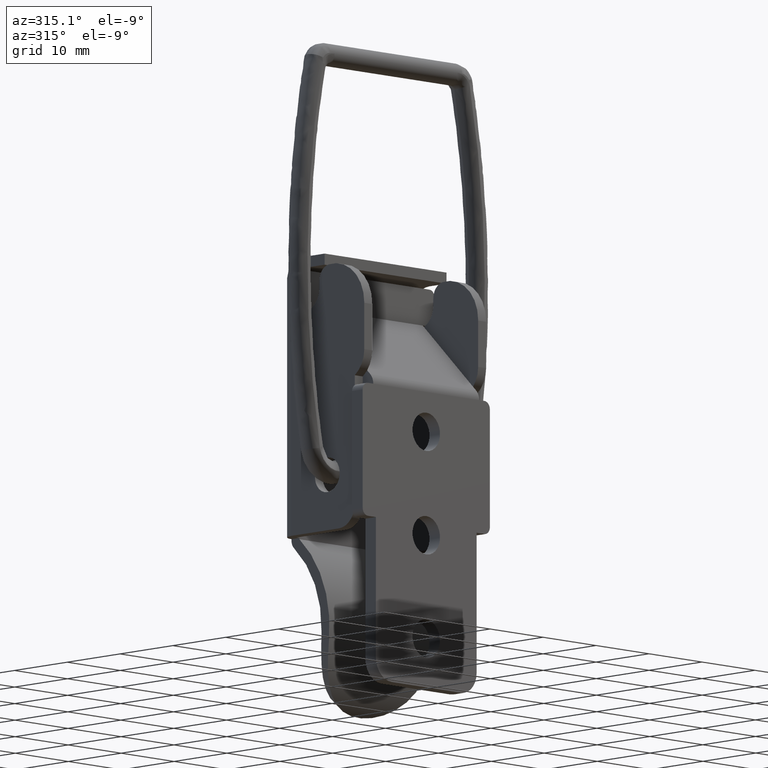
[diagram: clean part render]
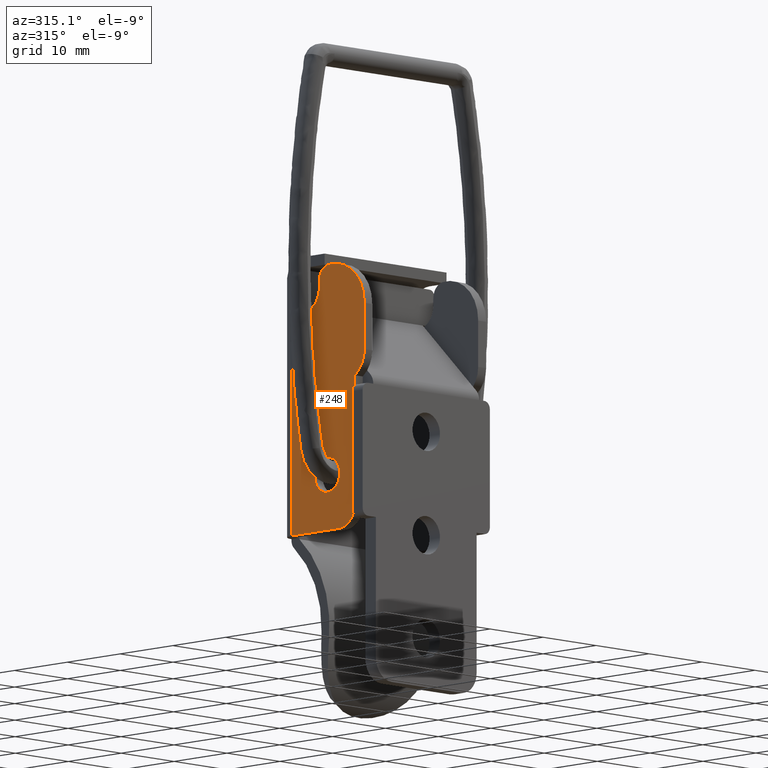
[diagram: same view with one face highlighted and labeled with its STEP entity id]
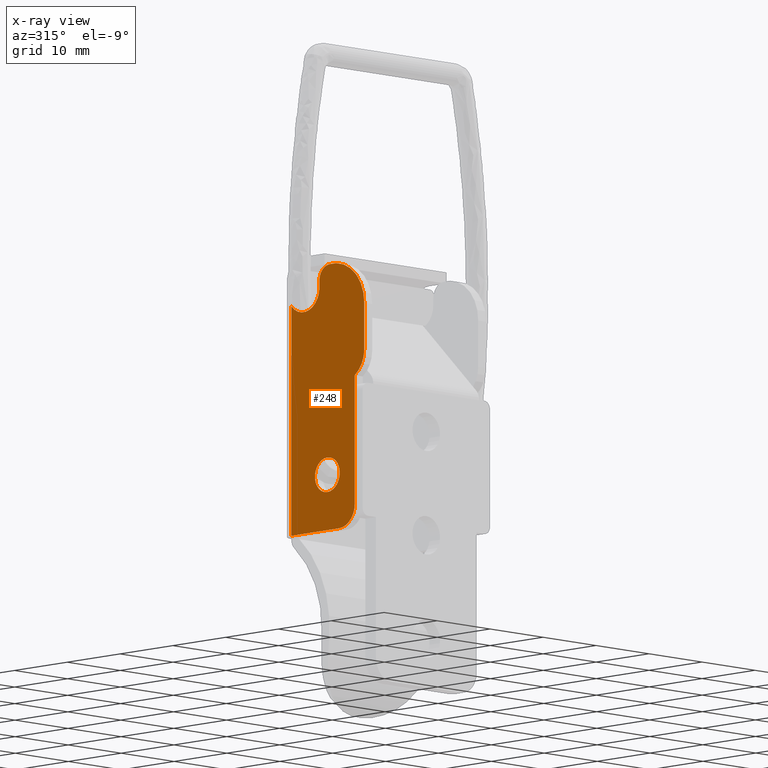
[diagram: x-ray of the same camera — body ghosted, the highlighted face saturated]
A machine part, auxiliary view. The second image highlights one B-rep face of the part: STEP entity #248.
The next image is the same camera in x-ray: the body ghosted, the highlighted face saturated — about 0% of this face is hidden behind the body in this view.
In plain terms, the highlighted planar face has unit normal (-1, 0, 0).
Its self-contained STEP definition (entity closure, byte-faithful):
#248=ADVANCED_FACE('',(#1268,#1269),#1267,.T.);
#1267=PLANE('',#2245);
#1268=FACE_OUTER_BOUND('',#2246,.T.);
#1269=FACE_BOUND('',#2247,.T.);
#2242=CARTESIAN_POINT('',(-8.38000000000E+00,2.30000000000E+01,-1.11803360514E+01));
#2243=DIRECTION('',(0.00000000000E+00,1.00000000000E+00,0.00000000000E+00));
#2244=DIRECTION('',(0.00000000000E+00,-0.00000000000E+00,1.00000000000E+00));
#2245=AXIS2_PLACEMENT_3D('',#2242,#2243,#2244);
#2246=EDGE_LOOP('',(#2881,#2882,#2883,#2884,#2885,#2886,#2887,#2888,#2889,#2890,#2891));
#2247=EDGE_LOOP('',(#2892,#2893));
#2881=ORIENTED_EDGE('',*,*,#3236,.F.);
#2882=ORIENTED_EDGE('',*,*,#3228,.T.);
#2883=ORIENTED_EDGE('',*,*,#3278,.F.);
#2884=ORIENTED_EDGE('',*,*,#3284,.T.);
#2885=ORIENTED_EDGE('',*,*,#3287,.F.);
#2886=ORIENTED_EDGE('',*,*,#3290,.T.);
#2887=ORIENTED_EDGE('',*,*,#3293,.F.);
#2888=ORIENTED_EDGE('',*,*,#3296,.T.);
#2889=ORIENTED_EDGE('',*,*,#3299,.T.);
#2890=ORIENTED_EDGE('',*,*,#3302,.F.);
#2891=ORIENTED_EDGE('',*,*,#3304,.F.);
#2892=ORIENTED_EDGE('',*,*,#3305,.F.);
#2893=ORIENTED_EDGE('',*,*,#3306,.F.);
#3228=EDGE_CURVE('',#4841,#4834,#4842,.T.);
#3236=EDGE_CURVE('',#4841,#4894,#4895,.T.);
#3278=EDGE_CURVE('',#5180,#4834,#5181,.T.);
#3284=EDGE_CURVE('',#5180,#5214,#5221,.T.);
#3287=EDGE_CURVE('',#5234,#5214,#5241,.T.);
#3290=EDGE_CURVE('',#5234,#5254,#5261,.T.);
#3293=EDGE_CURVE('',#5274,#5254,#5281,.T.);
#3296=EDGE_CURVE('',#5274,#5294,#5301,.T.);
#3299=EDGE_CURVE('',#5294,#5314,#5321,.T.);
#3302=EDGE_CURVE('',#5334,#5314,#5341,.T.);
#3304=EDGE_CURVE('',#4894,#5334,#5353,.T.);
#3305=EDGE_CURVE('',#5359,#5360,#5361,.T.);
#3306=EDGE_CURVE('',#5360,#5359,#5367,.T.);
#4834=VERTEX_POINT('',#6533);
#4841=VERTEX_POINT('',#6538);
#4842=LINE('',#6539,#6540);
#4894=VERTEX_POINT('',#6567);
#4895=LINE('',#6568,#6569);
#5180=VERTEX_POINT('',#6838);
#5181=LINE('',#6839,#6840);
#5214=VERTEX_POINT('',#6858);
#5221=CIRCLE('',#6865,3.00000000000E+00);
#5234=VERTEX_POINT('',#6870);
#5241=LINE('',#6874,#6875);
#5254=VERTEX_POINT('',#6882);
#5261=CIRCLE('',#6889,4.00000000000E+00);
#5274=VERTEX_POINT('',#6894);
#5281=LINE('',#6898,#6899);
#5294=VERTEX_POINT('',#6906);
#5301=CIRCLE('',#6913,6.00000000000E+00);
#5314=VERTEX_POINT('',#6919);
#5321=CIRCLE('',#6926,2.00000000000E+00);
#5334=VERTEX_POINT('',#6931);
#5341=LINE('',#6935,#6936);
#5353=CIRCLE('',#6945,3.00000000000E+00);
#5359=VERTEX_POINT('',#6946);
#5360=VERTEX_POINT('',#6947);
#5361=CIRCLE('',#6951,2.35000000000E+00);
#5367=CIRCLE('',#6955,2.35000000000E+00);
#6533=CARTESIAN_POINT('',(6.79999999996E+00,2.30000000000E+01,-7.50000000000E+00));
#6538=CARTESIAN_POINT('',(6.79999999996E+00,2.30000000000E+01,2.35645303901E+01));
#6539=CARTESIAN_POINT('',(6.79999999996E+00,2.30000000000E+01,2.35645303901E+01));
#6540=VECTOR('',#6541,3.10645303901E+01);
#6541=DIRECTION('',(0.00000000000E+00,0.00000000000E+00,-1.00000000000E+00));
#6567=CARTESIAN_POINT('',(6.76833752096E+00,2.30000000000E+01,2.35366750419E+01));
#6568=CARTESIAN_POINT('',(6.79999999996E+00,2.30000000000E+01,2.35645303901E+01));
#6569=VECTOR('',#6570,4.21714713486E-02);
#6570=DIRECTION('',(-7.50803279733E-01,0.00000000000E+00,-6.60525877723E-01));
#6838=CARTESIAN_POINT('',(-2.20000000000E+00,2.30000000000E+01,-7.50000000000E+00));
#6839=CARTESIAN_POINT('',(-2.20000000000E+00,2.30000000000E+01,-7.50000000000E+00));
#6840=VECTOR('',#6841,8.99999999997E+00);
#6841=DIRECTION('',(1.00000000000E+00,0.00000000000E+00,0.00000000000E+00));
#6858=CARTESIAN_POINT('',(-5.20000000000E+00,2.30000000000E+01,-4.50000000000E+00));
#6862=CARTESIAN_POINT('',(-2.20000000000E+00,2.30000000000E+01,-4.50000000000E+00));
#6863=DIRECTION('',(0.00000000000E+00,1.00000000000E+00,0.00000000000E+00));
#6864=DIRECTION('',(-0.00000000000E+00,0.00000000000E+00,-1.00000000000E+00));
#6865=AXIS2_PLACEMENT_3D('',#6862,#6863,#6864);
#6870=CARTESIAN_POINT('',(-5.20000000000E+00,2.30000000000E+01,1.29000000000E+01));
#6874=CARTESIAN_POINT('',(-5.20000000000E+00,2.30000000000E+01,1.29000000000E+01));
#6875=VECTOR('',#6876,1.74000000000E+01);
#6876=DIRECTION('',(0.00000000000E+00,0.00000000000E+00,-1.00000000000E+00));
#6882=CARTESIAN_POINT('',(-7.00000000000E+00,2.30000000000E+01,1.62406586177E+01));
#6886=CARTESIAN_POINT('',(-3.00000000000E+00,2.30000000000E+01,1.62406586177E+01));
#6887=DIRECTION('',(0.00000000000E+00,1.00000000000E+00,0.00000000000E+00));
#6888=DIRECTION('',(-0.00000000000E+00,0.00000000000E+00,-1.00000000000E+00));
#6889=AXIS2_PLACEMENT_3D('',#6886,#6887,#6888);
#6894=CARTESIAN_POINT('',(-7.00000000000E+00,2.30000000000E+01,2.25000000000E+01));
#6898=CARTESIAN_POINT('',(-7.00000000000E+00,2.30000000000E+01,2.25000000000E+01));
#6899=VECTOR('',#6900,6.25934138230E+00);
#6900=DIRECTION('',(0.00000000000E+00,0.00000000000E+00,-1.00000000000E+00));
#6906=CARTESIAN_POINT('',(-2.50000000000E-01,2.30000000000E+01,2.84529404499E+01));
#6910=CARTESIAN_POINT('',(-1.00000000000E+00,2.30000000000E+01,2.25000000000E+01));
#6911=DIRECTION('',(0.00000000000E+00,1.00000000000E+00,0.00000000000E+00));
#6912=DIRECTION('',(-0.00000000000E+00,0.00000000000E+00,-1.00000000000E+00));
#6913=AXIS2_PLACEMENT_3D('',#6910,#6911,#6912);
#6919=CARTESIAN_POINT('',(1.50000000000E+00,2.30000000000E+01,2.64686269666E+01));
#6923=CARTESIAN_POINT('',(-5.00000000000E-01,2.30000000000E+01,2.64686269666E+01));
#6924=DIRECTION('',(0.00000000000E+00,1.00000000000E+00,0.00000000000E+00));
#6925=DIRECTION('',(-0.00000000000E+00,0.00000000000E+00,-1.00000000000E+00));
#6926=AXIS2_PLACEMENT_3D('',#6923,#6924,#6925);
#6931=CARTESIAN_POINT('',(1.50000000000E+00,2.30000000000E+01,2.55000000000E+01));
#6935=CARTESIAN_POINT('',(1.50000000000E+00,2.30000000000E+01,2.55000000000E+01));
#6936=VECTOR('',#6937,9.68626966597E-01);
#6937=DIRECTION('',(0.00000000000E+00,0.00000000000E+00,1.00000000000E+00));
#6942=CARTESIAN_POINT('',(4.50000000000E+00,2.30000000000E+01,2.55000000000E+01));
#6943=DIRECTION('',(0.00000000000E+00,1.00000000000E+00,0.00000000000E+00));
#6944=DIRECTION('',(7.56112506988E-01,0.00000000000E+00,-6.54441652690E-01));
#6945=AXIS2_PLACEMENT_3D('',#6942,#6943,#6944);
#6946=CARTESIAN_POINT('',(1.48029736617E-16,2.30000000000E+01,-2.35000000000E+00));
#6947=CARTESIAN_POINT('',(0.00000000000E+00,2.30000000000E+01,2.35000000000E+00));
#6948=CARTESIAN_POINT('',(0.00000000000E+00,2.30000000000E+01,-8.52651282912E-14));
#6949=DIRECTION('',(0.00000000000E+00,1.00000000000E+00,0.00000000000E+00));
#6950=DIRECTION('',(-1.22460635382E-16,0.00000000000E+00,1.00000000000E+00));
#6951=AXIS2_PLACEMENT_3D('',#6948,#6949,#6950);
#6952=CARTESIAN_POINT('',(0.00000000000E+00,2.30000000000E+01,-8.52651282912E-14));
#6953=DIRECTION('',(0.00000000000E+00,1.00000000000E+00,0.00000000000E+00));
#6954=DIRECTION('',(-1.22460635382E-16,0.00000000000E+00,1.00000000000E+00));
#6955=AXIS2_PLACEMENT_3D('',#6952,#6953,#6954);